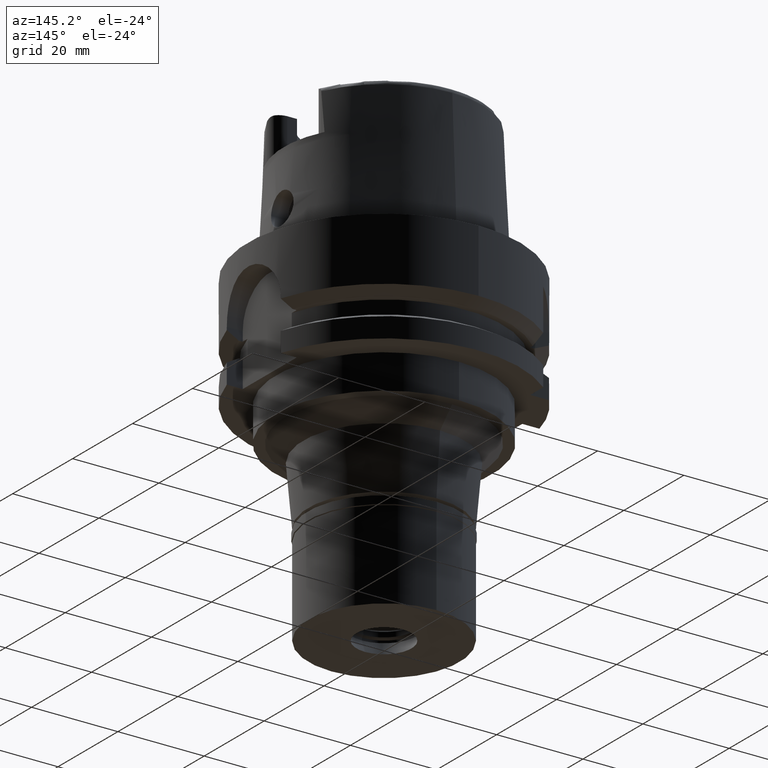
[diagram: clean part render]
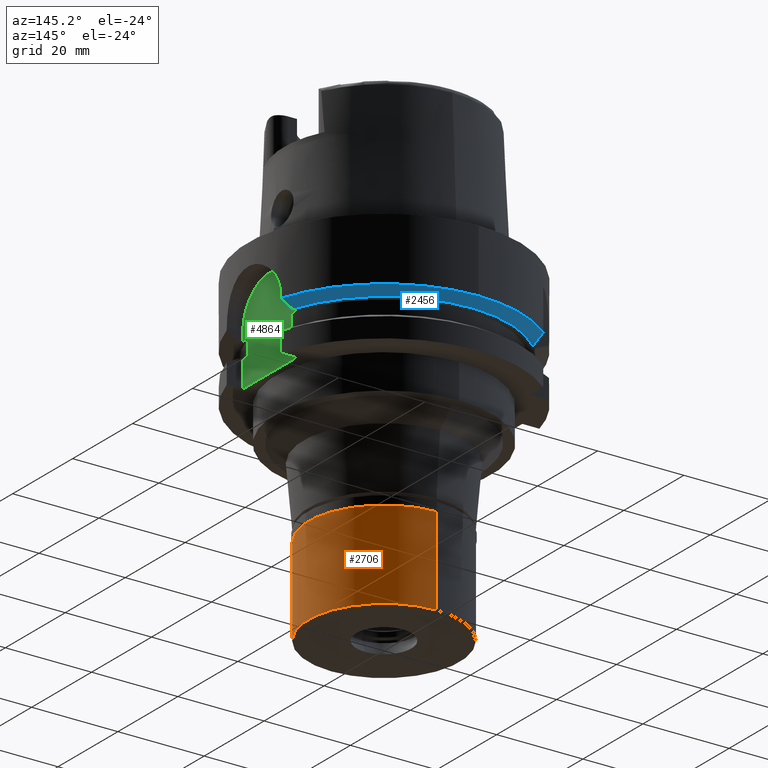
[diagram: same view with three faces highlighted in distinct colors, each labeled with its STEP entity id]
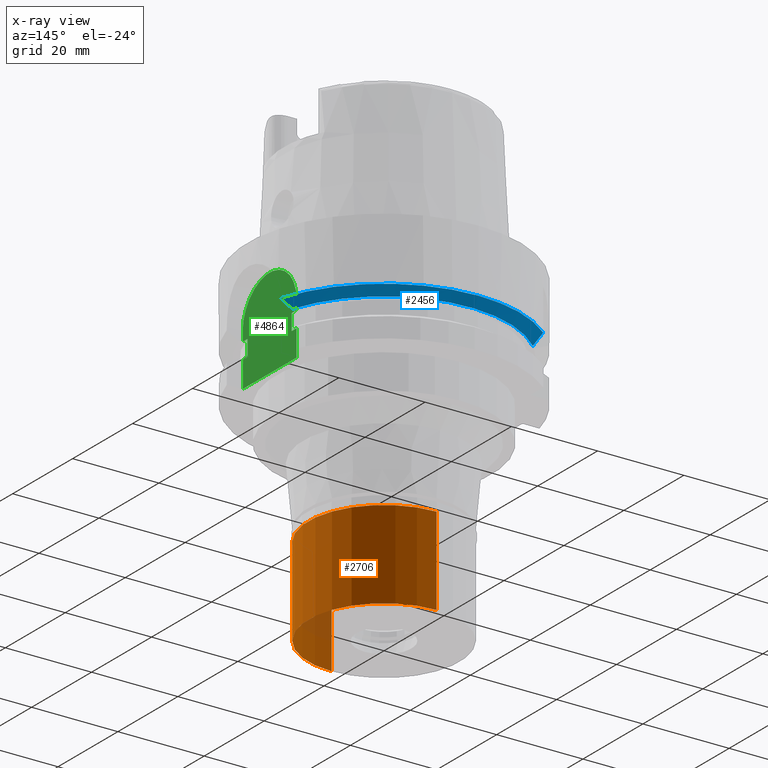
[diagram: x-ray of the same camera — body ghosted, the three highlighted faces saturated]
A machine part, auxiliary view with three faces highlighted in distinct colors.
The next image is the same camera in x-ray (body ghosted, the three faces saturated) — at least one of them is partly hidden behind the body in this view.
Their STEP definitions:

[orange] entity #2706 — the highlighted cylindrical surface (partial cylindrical patch) has radius 17.5 mm, axis along (0, 0, -1).
#241 = CARTESIAN_POINT ( 'NONE',  ( 0.0000000000000000000, 17.50000000000000000, -22.50000000000000000 ) ) ;
#459 = CARTESIAN_POINT ( 'NONE',  ( 0.0000000000000000000, 0.0000000000000000000, -22.50000000000000000 ) ) ;
#667 = EDGE_CURVE ( 'NONE', #3959, #1115, #3391, .T. ) ;
#691 = DIRECTION ( 'NONE',  ( 0.0000000000000000000, 1.000000000000000000, 0.0000000000000000000 ) ) ;
#702 = ORIENTED_EDGE ( 'NONE', *, *, #1256, .T. ) ;
#1115 = VERTEX_POINT ( 'NONE', #241 ) ;
#1176 = DIRECTION ( 'NONE',  ( 0.0000000000000000000, 0.0000000000000000000, -1.000000000000000000 ) ) ;
#1230 = CARTESIAN_POINT ( 'NONE',  ( 0.0000000000000000000, -17.50000000000000000, -2.000000000000000000 ) ) ;
#1256 = EDGE_CURVE ( 'NONE', #4663, #3959, #3882, .T. ) ;
#1302 = DIRECTION ( 'NONE',  ( 0.0000000000000000000, 0.0000000000000000000, 1.000000000000000000 ) ) ;
#1426 = CIRCLE ( 'NONE', #5429, 17.50000000000000000 ) ;
#1653 = LINE ( 'NONE', #3447, #4049 ) ;
#1736 = DIRECTION ( 'NONE',  ( 0.0000000000000000000, 0.0000000000000000000, -1.000000000000000000 ) ) ;
#1919 = ORIENTED_EDGE ( 'NONE', *, *, #2417, .F. ) ;
#2018 = FACE_OUTER_BOUND ( 'NONE', #3901, .T. ) ;
#2334 = DIRECTION ( 'NONE',  ( 0.0000000000000000000, -1.000000000000000000, 0.0000000000000000000 ) ) ;
#2417 = EDGE_CURVE ( 'NONE', #3895, #1115, #1653, .T. ) ;
#2467 = CARTESIAN_POINT ( 'NONE',  ( 0.0000000000000000000, 0.0000000000000000000, -2.000000000000000000 ) ) ;
#2706 = ADVANCED_FACE ( 'NONE', ( #2018 ), #3336, .T. ) ;
#3037 = DIRECTION ( 'NONE',  ( 0.0000000000000000000, -1.000000000000000000, 0.0000000000000000000 ) ) ;
#3172 = CARTESIAN_POINT ( 'NONE',  ( 0.0000000000000000000, 17.50000000000000000, -2.000000000000000000 ) ) ;
#3336 = CYLINDRICAL_SURFACE ( 'NONE', #5557, 17.50000000000000000 ) ;
#3391 = CIRCLE ( 'NONE', #4032, 17.50000000000000000 ) ;
#3447 = CARTESIAN_POINT ( 'NONE',  ( 0.0000000000000000000, 17.50000000000000000, -2.000000000000000000 ) ) ;
#3581 = VECTOR ( 'NONE', #4278, 1000.000000000000000 ) ;
#3882 = LINE ( 'NONE', #5217, #3581 ) ;
#3895 = VERTEX_POINT ( 'NONE', #3172 ) ;
#3901 = EDGE_LOOP ( 'NONE', ( #4272, #702, #4406, #1919 ) ) ;
#3959 = VERTEX_POINT ( 'NONE', #4601 ) ;
#4032 = AXIS2_PLACEMENT_3D ( 'NONE', #459, #1302, #3037 ) ;
#4049 = VECTOR ( 'NONE', #1736, 1000.000000000000000 ) ;
#4272 = ORIENTED_EDGE ( 'NONE', *, *, #5157, .T. ) ;
#4278 = DIRECTION ( 'NONE',  ( 0.0000000000000000000, 0.0000000000000000000, -1.000000000000000000 ) ) ;
#4406 = ORIENTED_EDGE ( 'NONE', *, *, #667, .T. ) ;
#4601 = CARTESIAN_POINT ( 'NONE',  ( 0.0000000000000000000, -17.50000000000000000, -22.50000000000000000 ) ) ;
#4663 = VERTEX_POINT ( 'NONE', #1230 ) ;
#5071 = CARTESIAN_POINT ( 'NONE',  ( 0.0000000000000000000, 0.0000000000000000000, 0.0000000000000000000 ) ) ;
#5157 = EDGE_CURVE ( 'NONE', #3895, #4663, #1426, .T. ) ;
#5217 = CARTESIAN_POINT ( 'NONE',  ( 0.0000000000000000000, -17.50000000000000000, -2.000000000000000000 ) ) ;
#5429 = AXIS2_PLACEMENT_3D ( 'NONE', #2467, #5464, #691 ) ;
#5464 = DIRECTION ( 'NONE',  ( 0.0000000000000000000, 0.0000000000000000000, -1.000000000000000000 ) ) ;
#5557 = AXIS2_PLACEMENT_3D ( 'NONE', #5071, #1176, #2334 ) ;

[blue] entity #2456 — the highlighted conical surface has half-angle 60 deg.
#101 = VERTEX_POINT ( 'NONE', #5453 ) ;
#115 = CARTESIAN_POINT ( 'NONE',  ( 29.25967188938000163, 8.999999703713999821, -15.13510029801000023 ) ) ;
#125 = CIRCLE ( 'NONE', #779, 31.50000000000000000 ) ;
#156 = DIRECTION ( 'NONE',  ( 0.0000000000000000000, 1.000000000000000000, 0.0000000000000000000 ) ) ;
#344 = FACE_OUTER_BOUND ( 'NONE', #5258, .T. ) ;
#600 = CARTESIAN_POINT ( 'NONE',  ( -20.00000808210187841, 21.97726579126707236, -15.65871069883595368 ) ) ;
#637 = CARTESIAN_POINT ( 'NONE',  ( 30.18691748912999628, 9.000000694692998238, -14.62249532230999982 ) ) ;
#779 = AXIS2_PLACEMENT_3D ( 'NONE', #2407, #4115, #2347 ) ;
#780 = ORIENTED_EDGE ( 'NONE', *, *, #5458, .T. ) ;
#1050 = AXIS2_PLACEMENT_3D ( 'NONE', #2287, #4026, #156 ) ;
#1060 = AXIS2_PLACEMENT_3D ( 'NONE', #3020, #5554, #4362 ) ;
#1139 = CIRCLE ( 'NONE', #2573, 31.49999999999999645 ) ;
#1493 = EDGE_CURVE ( 'NONE', #3274, #3006, #1139, .T. ) ;
#1647 = B_SPLINE_CURVE_WITH_KNOTS ( 'NONE', 3,
 ( #3965, #4870, #4504, #115, #5243, #2759 ),
 .UNSPECIFIED., .F., .F.,
 ( 4, 1, 1, 4 ),
 ( 0.0000000000000000000, 0.3333333333333000081, 0.6666666666667000474, 1.000000000000000000 ),
 .UNSPECIFIED. ) ;
#2287 = CARTESIAN_POINT ( 'NONE',  ( 0.0000000000000000000, 0.0000000000000000000, -16.12500000000000000 ) ) ;
#2347 = DIRECTION ( 'NONE',  ( 0.0000000000000000000, 1.000000000000000000, 0.0000000000000000000 ) ) ;
#2407 = CARTESIAN_POINT ( 'NONE',  ( 0.0000000000000000000, 0.0000000000000000000, -14.62250092523999889 ) ) ;
#2456 = ADVANCED_FACE ( 'NONE', ( #344 ), #5414, .T. ) ;
#2551 = EDGE_CURVE ( 'NONE', #4778, #3274, #1647, .T. ) ;
#2573 = AXIS2_PLACEMENT_3D ( 'NONE', #4329, #3843, #3418 ) ;
#2759 = CARTESIAN_POINT ( 'NONE',  ( 30.18691748912999628, 9.000000694692998238, -14.62249532230999982 ) ) ;
#3006 = VERTEX_POINT ( 'NONE', #5347 ) ;
#3020 = CARTESIAN_POINT ( 'NONE',  ( 0.0000000000000000000, 0.0000000000000000000, -15.37375046262000033 ) ) ;
#3274 = VERTEX_POINT ( 'NONE', #637 ) ;
#3418 = DIRECTION ( 'NONE',  ( 0.9583148474999051425, 0.2857142857143015191, 0.0000000000000000000 ) ) ;
#3460 = ORIENTED_EDGE ( 'NONE', *, *, #1493, .F. ) ;
#3564 = EDGE_CURVE ( 'NONE', #3006, #4010, #125, .T. ) ;
#3597 = CARTESIAN_POINT ( 'NONE',  ( -20.00001377493000021, 24.33617572673000140, -14.62245154170999939 ) ) ;
#3654 = CARTESIAN_POINT ( 'NONE',  ( -20.00000400335999728, 20.85831984813000162, -16.12500000000000000 ) ) ;
#3779 = EDGE_CURVE ( 'NONE', #4778, #101, #5219, .T. ) ;
#3843 = DIRECTION ( 'NONE',  ( 0.0000000000000000000, 0.0000000000000000000, 1.000000000000000000 ) ) ;
#3965 = CARTESIAN_POINT ( 'NONE',  ( 27.46035055810000003, 9.000000209280001329, -16.12500000000000000 ) ) ;
#4010 = VERTEX_POINT ( 'NONE', #4110 ) ;
#4026 = DIRECTION ( 'NONE',  ( 0.0000000000000000000, 0.0000000000000000000, 1.000000000000000000 ) ) ;
#4110 = CARTESIAN_POINT ( 'NONE',  ( -20.00001377493000021, 24.33617572673000140, -14.62245154170999939 ) ) ;
#4115 = DIRECTION ( 'NONE',  ( 0.0000000000000000000, 0.0000000000000000000, 1.000000000000000000 ) ) ;
#4271 = ORIENTED_EDGE ( 'NONE', *, *, #3779, .T. ) ;
#4322 = CARTESIAN_POINT ( 'NONE',  ( 27.46035055810000003, 9.000000209280001329, -16.12500000000000000 ) ) ;
#4329 = CARTESIAN_POINT ( 'NONE',  ( 0.0000000000000000000, 0.0000000000000000000, -14.62250092523999889 ) ) ;
#4362 = DIRECTION ( 'NONE',  ( 0.0000000000000000000, 1.000000000000000000, 0.0000000000000000000 ) ) ;
#4504 = CARTESIAN_POINT ( 'NONE',  ( 28.35082416169000297, 8.999999994961001448, -15.63595008484999838 ) ) ;
#4544 = CARTESIAN_POINT ( 'NONE',  ( -20.00002748883304093, 23.13591286296415817, -15.15787019954225556 ) ) ;
#4778 = VERTEX_POINT ( 'NONE', #4322 ) ;
#4870 = CARTESIAN_POINT ( 'NONE',  ( 27.75542981638000128, 9.000000209280001329, -15.96310908733999945 ) ) ;
#4971 = B_SPLINE_CURVE_WITH_KNOTS ( 'NONE', 3,
 ( #3654, #600, #4544, #3597 ),
 .UNSPECIFIED., .F., .F.,
 ( 4, 4 ),
 ( 0.0000000000000000000, 1.000000000000000000 ),
 .UNSPECIFIED. ) ;
#5035 = ORIENTED_EDGE ( 'NONE', *, *, #3564, .F. ) ;
#5175 = ORIENTED_EDGE ( 'NONE', *, *, #2551, .F. ) ;
#5219 = CIRCLE ( 'NONE', #1050, 28.89759526419000224 ) ;
#5243 = CARTESIAN_POINT ( 'NONE',  ( 29.87607671083999961, 9.000000694692998238, -14.79447834128999872 ) ) ;
#5258 = EDGE_LOOP ( 'NONE', ( #5035, #3460, #5175, #4271, #780 ) ) ;
#5347 = CARTESIAN_POINT ( 'NONE',  ( 0.0000000000000000000, 31.50000000000000000, -14.62250092523999889 ) ) ;
#5414 = CONICAL_SURFACE ( 'NONE', #1060, 30.19879763209999979, 1.047197551196400456 ) ;
#5453 = CARTESIAN_POINT ( 'NONE',  ( -20.00000400335999728, 20.85831984813000162, -16.12500000000000000 ) ) ;
#5458 = EDGE_CURVE ( 'NONE', #101, #4010, #4971, .T. ) ;
#5554 = DIRECTION ( 'NONE',  ( 0.0000000000000000000, 0.0000000000000000000, 1.000000000000000000 ) ) ;

[green] entity #4864 — the highlighted planar face has unit normal (1, 0, 0).
#3 = CARTESIAN_POINT ( 'NONE',  ( 26.50000000000000000, -9.000000000000000000, -14.00000000000000000 ) ) ;
#6 = LINE ( 'NONE', #5180, #1860 ) ;
#16 = VERTEX_POINT ( 'NONE', #2889 ) ;
#18 = EDGE_CURVE ( 'NONE', #246, #2585, #4169, .T. ) ;
#23 = CARTESIAN_POINT ( 'NONE',  ( 26.50000000000000000, 7.348469228349999938, -19.87500000000000000 ) ) ;
#87 = DIRECTION ( 'NONE',  ( 2.366280491871000116E-14, 1.000000000000000000, 0.0000000000000000000 ) ) ;
#196 = CARTESIAN_POINT ( 'NONE',  ( 26.50000000000000000, -9.000000000000000000, -16.12500000000000000 ) ) ;
#217 = FACE_OUTER_BOUND ( 'NONE', #1925, .T. ) ;
#246 = VERTEX_POINT ( 'NONE', #4301 ) ;
#305 = ORIENTED_EDGE ( 'NONE', *, *, #4861, .F. ) ;
#345 = VERTEX_POINT ( 'NONE', #3449 ) ;
#371 = DIRECTION ( 'NONE',  ( -1.000000000000000000, 0.0000000000000000000, 0.0000000000000000000 ) ) ;
#402 = DIRECTION ( 'NONE',  ( 0.0000000000000000000, 0.0000000000000000000, 1.000000000000000000 ) ) ;
#457 = VERTEX_POINT ( 'NONE', #1879 ) ;
#522 = ORIENTED_EDGE ( 'NONE', *, *, #2592, .F. ) ;
#526 = CARTESIAN_POINT ( 'NONE',  ( 26.50000000000000000, 7.348469228349999938, -16.12500000000000000 ) ) ;
#669 = VERTEX_POINT ( 'NONE', #690 ) ;
#690 = CARTESIAN_POINT ( 'NONE',  ( 26.50000000000000000, -7.348469228349999938, -16.12500000000000000 ) ) ;
#796 = VECTOR ( 'NONE', #3431, 1000.000000000000000 ) ;
#867 = VECTOR ( 'NONE', #4839, 1000.000000000000000 ) ;
#1077 = ORIENTED_EDGE ( 'NONE', *, *, #5278, .T. ) ;
#1118 = DIRECTION ( 'NONE',  ( 0.0000000000000000000, 0.0000000000000000000, 1.000000000000000000 ) ) ;
#1140 = ORIENTED_EDGE ( 'NONE', *, *, #3434, .T. ) ;
#1264 = DIRECTION ( 'NONE',  ( 0.0000000000000000000, 0.0000000000000000000, -1.000000000000000000 ) ) ;
#1309 = DIRECTION ( 'NONE',  ( 0.0000000000000000000, 0.0000000000000000000, 1.000000000000000000 ) ) ;
#1397 = CARTESIAN_POINT ( 'NONE',  ( 26.50000000000000000, 9.000000000000000000, -26.00000000000000000 ) ) ;
#1468 = VERTEX_POINT ( 'NONE', #2049 ) ;
#1489 = EDGE_CURVE ( 'NONE', #4261, #16, #2397, .T. ) ;
#1555 = CARTESIAN_POINT ( 'NONE',  ( 26.50000000000000000, -9.000000000000000000, -26.00000000000000000 ) ) ;
#1597 = EDGE_CURVE ( 'NONE', #4385, #1468, #1842, .T. ) ;
#1641 = DIRECTION ( 'NONE',  ( 0.0000000000000000000, 0.0000000000000000000, -1.000000000000000000 ) ) ;
#1692 = LINE ( 'NONE', #2543, #796 ) ;
#1754 = DIRECTION ( 'NONE',  ( 0.0000000000000000000, 0.0000000000000000000, 1.000000000000000000 ) ) ;
#1782 = VECTOR ( 'NONE', #2719, 1000.000000000000000 ) ;
#1837 = CARTESIAN_POINT ( 'NONE',  ( 26.50000000000000000, 0.0000000000000000000, 0.0000000000000000000 ) ) ;
#1842 = LINE ( 'NONE', #526, #3318 ) ;
#1859 = CARTESIAN_POINT ( 'NONE',  ( 26.50000000000000000, -9.000000000000000000, -19.87500000000000000 ) ) ;
#1860 = VECTOR ( 'NONE', #1264, 1000.000000000000000 ) ;
#1876 = CARTESIAN_POINT ( 'NONE',  ( 26.50000000000000000, 7.348469228349999938, -19.87500000000000000 ) ) ;
#1879 = CARTESIAN_POINT ( 'NONE',  ( 26.50000000000000000, 7.348469228349999938, -19.87500000000000000 ) ) ;
#1925 = EDGE_LOOP ( 'NONE', ( #4133, #522, #3325, #4784, #3874, #2801, #305, #2683, #1140, #3112, #2144, #1077 ) ) ;
#1934 = VERTEX_POINT ( 'NONE', #196 ) ;
#2049 = CARTESIAN_POINT ( 'NONE',  ( 26.50000000000000000, 9.000000000000000000, -16.12500000000000000 ) ) ;
#2119 = AXIS2_PLACEMENT_3D ( 'NONE', #2531, #371, #402 ) ;
#2144 = ORIENTED_EDGE ( 'NONE', *, *, #18, .F. ) ;
#2164 = CARTESIAN_POINT ( 'NONE',  ( 26.50000000000000000, -9.000000000000000000, -16.12500000000000000 ) ) ;
#2356 = EDGE_CURVE ( 'NONE', #3752, #2567, #6, .T. ) ;
#2397 = CIRCLE ( 'NONE', #2119, 9.000000000000000000 ) ;
#2531 = CARTESIAN_POINT ( 'NONE',  ( 26.50000000000000000, 0.0000000000000000000, -14.00000000000000000 ) ) ;
#2543 = CARTESIAN_POINT ( 'NONE',  ( 26.50000000000000000, -9.000000000000000000, -26.00000000000000000 ) ) ;
#2567 = VERTEX_POINT ( 'NONE', #1397 ) ;
#2585 = VERTEX_POINT ( 'NONE', #5355 ) ;
#2592 = EDGE_CURVE ( 'NONE', #457, #3752, #5298, .T. ) ;
#2640 = LINE ( 'NONE', #2164, #867 ) ;
#2661 = LINE ( 'NONE', #4435, #3789 ) ;
#2683 = ORIENTED_EDGE ( 'NONE', *, *, #4200, .T. ) ;
#2695 = LINE ( 'NONE', #23, #4836 ) ;
#2719 = DIRECTION ( 'NONE',  ( -2.366280491871000116E-14, 1.000000000000000000, 0.0000000000000000000 ) ) ;
#2801 = ORIENTED_EDGE ( 'NONE', *, *, #1489, .F. ) ;
#2889 = CARTESIAN_POINT ( 'NONE',  ( 26.50000000000000000, 9.000000000000000000, -14.00000000000000000 ) ) ;
#2924 = CARTESIAN_POINT ( 'NONE',  ( 26.50000000000000000, -7.348469228349999938, -16.12500000000000000 ) ) ;
#3004 = EDGE_CURVE ( 'NONE', #457, #4385, #2695, .T. ) ;
#3112 = ORIENTED_EDGE ( 'NONE', *, *, #5384, .F. ) ;
#3234 = VECTOR ( 'NONE', #87, 1000.000000000000000 ) ;
#3318 = VECTOR ( 'NONE', #3963, 1000.000000000000000 ) ;
#3325 = ORIENTED_EDGE ( 'NONE', *, *, #3004, .T. ) ;
#3383 = CARTESIAN_POINT ( 'NONE',  ( 26.50000000000000000, 9.000000000000000000, -14.00000000000000000 ) ) ;
#3431 = DIRECTION ( 'NONE',  ( 0.0000000000000000000, 1.000000000000000000, 0.0000000000000000000 ) ) ;
#3434 = EDGE_CURVE ( 'NONE', #669, #345, #3865, .T. ) ;
#3449 = CARTESIAN_POINT ( 'NONE',  ( 26.50000000000000000, -7.348469228349999938, -19.87500000000000000 ) ) ;
#3752 = VERTEX_POINT ( 'NONE', #5224 ) ;
#3789 = VECTOR ( 'NONE', #1118, 1000.000000000000000 ) ;
#3848 = VECTOR ( 'NONE', #1641, 1000.000000000000000 ) ;
#3865 = LINE ( 'NONE', #2924, #3848 ) ;
#3874 = ORIENTED_EDGE ( 'NONE', *, *, #4662, .F. ) ;
#3963 = DIRECTION ( 'NONE',  ( 2.366280491871000116E-14, 1.000000000000000000, 0.0000000000000000000 ) ) ;
#4133 = ORIENTED_EDGE ( 'NONE', *, *, #2356, .F. ) ;
#4169 = LINE ( 'NONE', #1555, #4924 ) ;
#4200 = EDGE_CURVE ( 'NONE', #1934, #669, #2640, .T. ) ;
#4261 = VERTEX_POINT ( 'NONE', #3 ) ;
#4301 = CARTESIAN_POINT ( 'NONE',  ( 26.50000000000000000, -9.000000000000000000, -26.00000000000000000 ) ) ;
#4385 = VERTEX_POINT ( 'NONE', #4499 ) ;
#4435 = CARTESIAN_POINT ( 'NONE',  ( 26.50000000000000000, -9.000000000000000000, -16.12500000000000000 ) ) ;
#4499 = CARTESIAN_POINT ( 'NONE',  ( 26.50000000000000000, 7.348469228349999938, -16.12500000000000000 ) ) ;
#4662 = EDGE_CURVE ( 'NONE', #16, #1468, #5546, .T. ) ;
#4784 = ORIENTED_EDGE ( 'NONE', *, *, #1597, .T. ) ;
#4836 = VECTOR ( 'NONE', #1754, 1000.000000000000000 ) ;
#4839 = DIRECTION ( 'NONE',  ( -2.366280491871000116E-14, 1.000000000000000000, 0.0000000000000000000 ) ) ;
#4861 = EDGE_CURVE ( 'NONE', #1934, #4261, #2661, .T. ) ;
#4864 = ADVANCED_FACE ( 'NONE', ( #217 ), #5004, .T. ) ;
#4924 = VECTOR ( 'NONE', #1309, 1000.000000000000000 ) ;
#4969 = VECTOR ( 'NONE', #5113, 1000.000000000000000 ) ;
#4974 = AXIS2_PLACEMENT_3D ( 'NONE', #1837, #5319, #4978 ) ;
#4978 = DIRECTION ( 'NONE',  ( 0.0000000000000000000, 1.000000000000000000, 0.0000000000000000000 ) ) ;
#5004 = PLANE ( 'NONE',  #4974 ) ;
#5113 = DIRECTION ( 'NONE',  ( 0.0000000000000000000, 0.0000000000000000000, -1.000000000000000000 ) ) ;
#5180 = CARTESIAN_POINT ( 'NONE',  ( 26.50000000000000000, 9.000000000000000000, -19.87500000000000000 ) ) ;
#5224 = CARTESIAN_POINT ( 'NONE',  ( 26.50000000000000000, 9.000000000000000000, -19.87500000000000000 ) ) ;
#5278 = EDGE_CURVE ( 'NONE', #246, #2567, #1692, .T. ) ;
#5298 = LINE ( 'NONE', #1876, #3234 ) ;
#5307 = LINE ( 'NONE', #1859, #1782 ) ;
#5319 = DIRECTION ( 'NONE',  ( 1.000000000000000000, 0.0000000000000000000, 0.0000000000000000000 ) ) ;
#5355 = CARTESIAN_POINT ( 'NONE',  ( 26.50000000000000000, -9.000000000000000000, -19.87500000000000000 ) ) ;
#5384 = EDGE_CURVE ( 'NONE', #2585, #345, #5307, .T. ) ;
#5546 = LINE ( 'NONE', #3383, #4969 ) ;